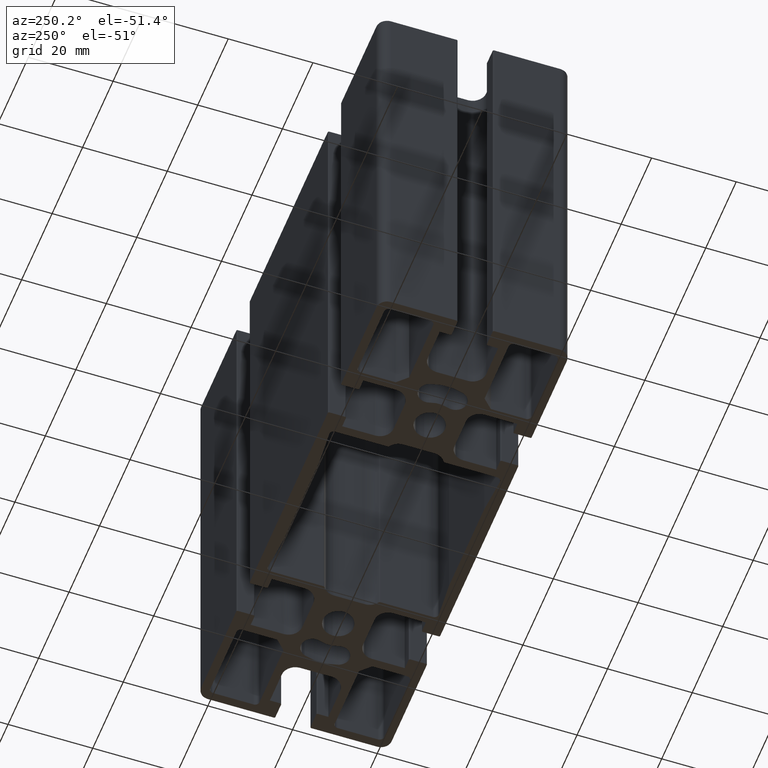
[diagram: clean part render]
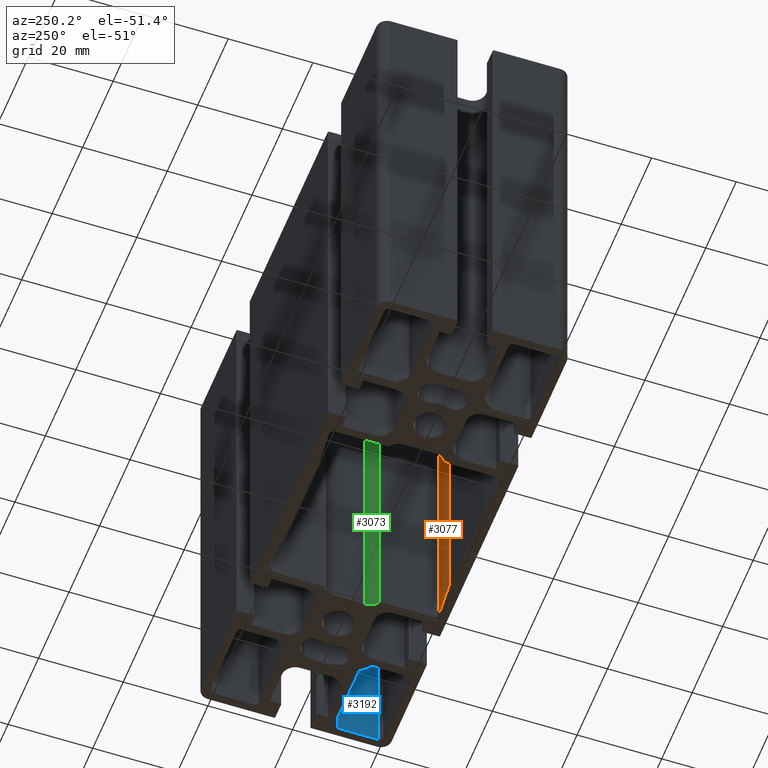
[diagram: same view with three faces highlighted in distinct colors, each labeled with its STEP entity id]
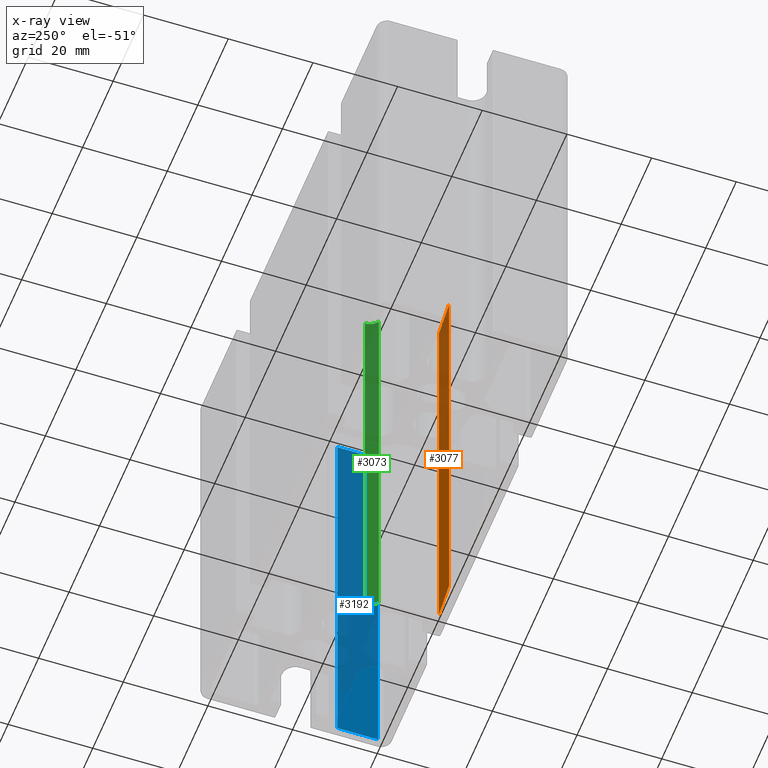
[diagram: x-ray of the same camera — body ghosted, the three highlighted faces saturated]
A machine part, auxiliary view with three faces highlighted in distinct colors.
The next image is the same camera in x-ray (body ghosted, the three faces saturated) — at least one of them is partly hidden behind the body in this view.
Their STEP definitions:

[orange] entity #3077 — the highlighted planar face has unit normal (-0.0767, -0.9971, 0).
#271=FACE_OUTER_BOUND('',#431,.T.);
#431=EDGE_LOOP('',(#2089,#2090,#2091,#2092));
#625=LINE('',#4562,#949);
#626=LINE('',#4565,#950);
#627=LINE('',#4567,#951);
#628=LINE('',#4568,#952);
#949=VECTOR('',#3619,100.);
#950=VECTOR('',#3622,8.54847544709786);
#951=VECTOR('',#3623,8.54847544709786);
#952=VECTOR('',#3624,100.);
#1273=VERTEX_POINT('',#4558);
#1274=VERTEX_POINT('',#4560);
#1275=VERTEX_POINT('',#4564);
#1276=VERTEX_POINT('',#4566);
#1603=EDGE_CURVE('',#1274,#1273,#625,.T.);
#1604=EDGE_CURVE('',#1273,#1275,#626,.T.);
#1605=EDGE_CURVE('',#1276,#1274,#627,.T.);
#1606=EDGE_CURVE('',#1276,#1275,#628,.T.);
#2089=ORIENTED_EDGE('',*,*,#1604,.F.);
#2090=ORIENTED_EDGE('',*,*,#1603,.F.);
#2091=ORIENTED_EDGE('',*,*,#1605,.F.);
#2092=ORIENTED_EDGE('',*,*,#1606,.T.);
#2984=PLANE('',#3253);
#3077=ADVANCED_FACE('',(#271),#2984,.F.);
#3253=AXIS2_PLACEMENT_3D('',#4563,#3620,#3621);
#3619=DIRECTION('',(0.,0.,1.));
#3620=DIRECTION('center_axis',(-0.0767190281268196,-0.99705275222692,0.));
#3621=DIRECTION('ref_axis',(0.,0.,-1.));
#3622=DIRECTION('',(-0.99705275222692,0.0767190281268196,0.));
#3623=DIRECTION('',(0.99705275222692,-0.0767190281268196,0.));
#3624=DIRECTION('',(0.,0.,1.));
#4558=CARTESIAN_POINT('',(20.0232809718632,-20.1558307282573,100.));
#4560=CARTESIAN_POINT('',(20.0232809718632,-20.1558307282573,0.));
#4562=CARTESIAN_POINT('',(20.0232809718632,-20.1558307282573,0.));
#4563=CARTESIAN_POINT('Origin',(20.0232809718632,-20.1558307282573,0.));
#4564=CARTESIAN_POINT('',(11.49999999999,-19.49999999999,100.));
#4565=CARTESIAN_POINT('',(9.29967793738842,-19.3306944443594,100.));
#4566=CARTESIAN_POINT('',(11.49999999999,-19.49999999999,0.));
#4567=CARTESIAN_POINT('',(9.29967793738842,-19.3306944443594,0.));
#4568=CARTESIAN_POINT('',(11.49999999999,-19.49999999999,0.));

[blue] entity #3192 — the highlighted planar face has unit normal (1, 0, 0).
#386=FACE_OUTER_BOUND('',#548,.T.);
#548=EDGE_LOOP('',(#2545,#2546,#2547,#2548));
#858=LINE('',#5268,#1182);
#859=LINE('',#5271,#1183);
#860=LINE('',#5273,#1184);
#861=LINE('',#5274,#1185);
#1182=VECTOR('',#4314,100.);
#1183=VECTOR('',#4317,9.60000000000001);
#1184=VECTOR('',#4318,9.60000000000001);
#1185=VECTOR('',#4319,100.);
#1514=VERTEX_POINT('',#5262);
#1516=VERTEX_POINT('',#5266);
#1517=VERTEX_POINT('',#5270);
#1518=VERTEX_POINT('',#5272);
#1952=EDGE_CURVE('',#1516,#1514,#858,.T.);
#1953=EDGE_CURVE('',#1514,#1517,#859,.T.);
#1954=EDGE_CURVE('',#1518,#1516,#860,.T.);
#1955=EDGE_CURVE('',#1518,#1517,#861,.T.);
#2545=ORIENTED_EDGE('',*,*,#1953,.F.);
#2546=ORIENTED_EDGE('',*,*,#1952,.F.);
#2547=ORIENTED_EDGE('',*,*,#1954,.F.);
#2548=ORIENTED_EDGE('',*,*,#1955,.T.);
#3041=PLANE('',#3484);
#3192=ADVANCED_FACE('',(#386),#3041,.F.);
#3484=AXIS2_PLACEMENT_3D('',#5269,#4315,#4316);
#4314=DIRECTION('',(0.,0.,1.));
#4315=DIRECTION('center_axis',(1.,0.,0.));
#4316=DIRECTION('ref_axis',(0.,0.,-1.));
#4317=DIRECTION('',(0.,-1.,0.));
#4318=DIRECTION('',(0.,1.,0.));
#4319=DIRECTION('',(0.,0.,1.));
#5262=CARTESIAN_POINT('',(57.99999999999,-9.89999999997758,100.));
#5266=CARTESIAN_POINT('',(57.99999999999,-9.89999999997758,0.));
#5268=CARTESIAN_POINT('',(57.99999999999,-9.89999999997758,0.));
#5269=CARTESIAN_POINT('Origin',(57.99999999999,-9.89999999997758,0.));
#5270=CARTESIAN_POINT('',(57.99999999999,-19.4999999999776,100.));
#5271=CARTESIAN_POINT('',(57.99999999999,-4.94999999998879,100.));
#5272=CARTESIAN_POINT('',(57.99999999999,-19.4999999999776,0.));
#5273=CARTESIAN_POINT('',(57.99999999999,-4.94999999998879,0.));
#5274=CARTESIAN_POINT('',(57.99999999999,-19.4999999999776,0.));

[green] entity #3073 — the highlighted cylindrical surface (edge-blend (fillet) strip) has radius 3.2 mm, axis along (0, 0, 1).
#43=CIRCLE('',#3244,3.2);
#44=CIRCLE('',#3245,3.2);
#187=CYLINDRICAL_SURFACE('',#3243,3.2);
#267=FACE_OUTER_BOUND('',#427,.T.);
#427=EDGE_LOOP('',(#2073,#2074,#2075,#2076));
#619=LINE('',#4538,#943);
#620=LINE('',#4544,#944);
#943=VECTOR('',#3593,100.);
#944=VECTOR('',#3600,100.);
#1265=VERTEX_POINT('',#4534);
#1266=VERTEX_POINT('',#4536);
#1267=VERTEX_POINT('',#4540);
#1268=VERTEX_POINT('',#4542);
#1591=EDGE_CURVE('',#1266,#1265,#619,.T.);
#1592=EDGE_CURVE('',#1265,#1267,#43,.T.);
#1593=EDGE_CURVE('',#1268,#1266,#44,.T.);
#1594=EDGE_CURVE('',#1268,#1267,#620,.T.);
#2073=ORIENTED_EDGE('',*,*,#1592,.F.);
#2074=ORIENTED_EDGE('',*,*,#1591,.F.);
#2075=ORIENTED_EDGE('',*,*,#1593,.F.);
#2076=ORIENTED_EDGE('',*,*,#1594,.T.);
#3073=ADVANCED_FACE('',(#267),#187,.F.);
#3243=AXIS2_PLACEMENT_3D('',#4539,#3594,#3595);
#3244=AXIS2_PLACEMENT_3D('',#4541,#3596,#3597);
#3245=AXIS2_PLACEMENT_3D('',#4543,#3598,#3599);
#3593=DIRECTION('',(0.,0.,1.));
#3594=DIRECTION('center_axis',(0.,0.,1.));
#3595=DIRECTION('ref_axis',(-0.514285714285718,0.857618915417348,0.));
#3596=DIRECTION('center_axis',(0.,0.,-1.));
#3597=DIRECTION('ref_axis',(-0.514285714285718,0.857618915417348,0.));
#3598=DIRECTION('center_axis',(0.,0.,1.));
#3599=DIRECTION('ref_axis',(-0.514285714285718,0.857618915417348,0.));
#3600=DIRECTION('',(0.,0.,1.));
#4534=CARTESIAN_POINT('',(22.79999999999,-3.69499999999001,100.));
#4536=CARTESIAN_POINT('',(22.79999999999,-3.69499999999001,0.));
#4538=CARTESIAN_POINT('',(22.79999999999,-3.69499999999001,0.));
#4539=CARTESIAN_POINT('Origin',(19.59999999999,-3.69499999999002,0.));
#4540=CARTESIAN_POINT('',(21.2457142857043,-6.43938052932553,100.));
#4541=CARTESIAN_POINT('Origin',(19.59999999999,-3.69499999999002,100.));
#4542=CARTESIAN_POINT('',(21.2457142857043,-6.43938052932553,0.));
#4543=CARTESIAN_POINT('Origin',(19.59999999999,-3.69499999999002,0.));
#4544=CARTESIAN_POINT('',(21.2457142857043,-6.43938052932553,0.));